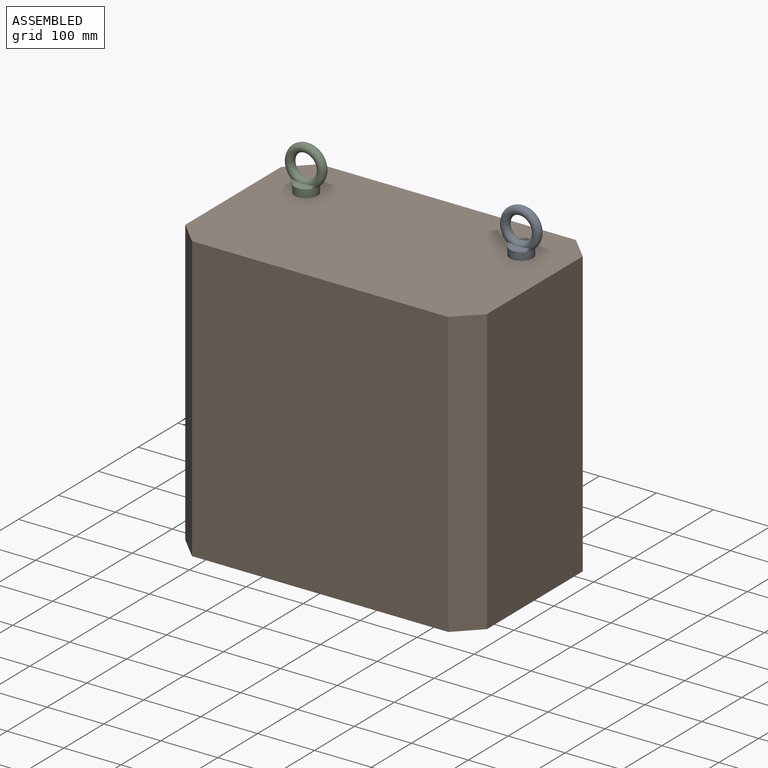
[diagram: assembled view]
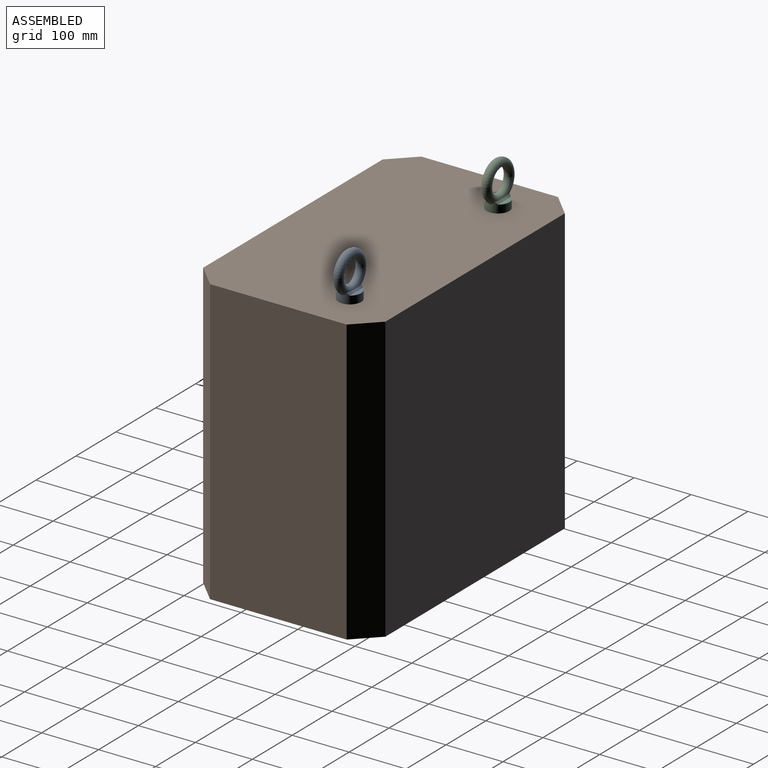
[diagram: assembled view, second angle]
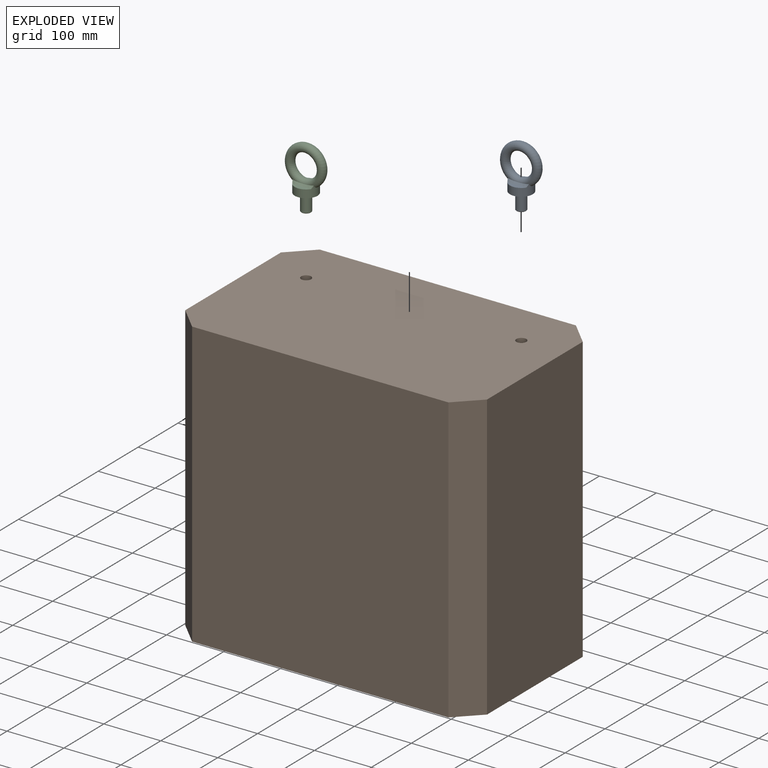
[diagram: exploded view]
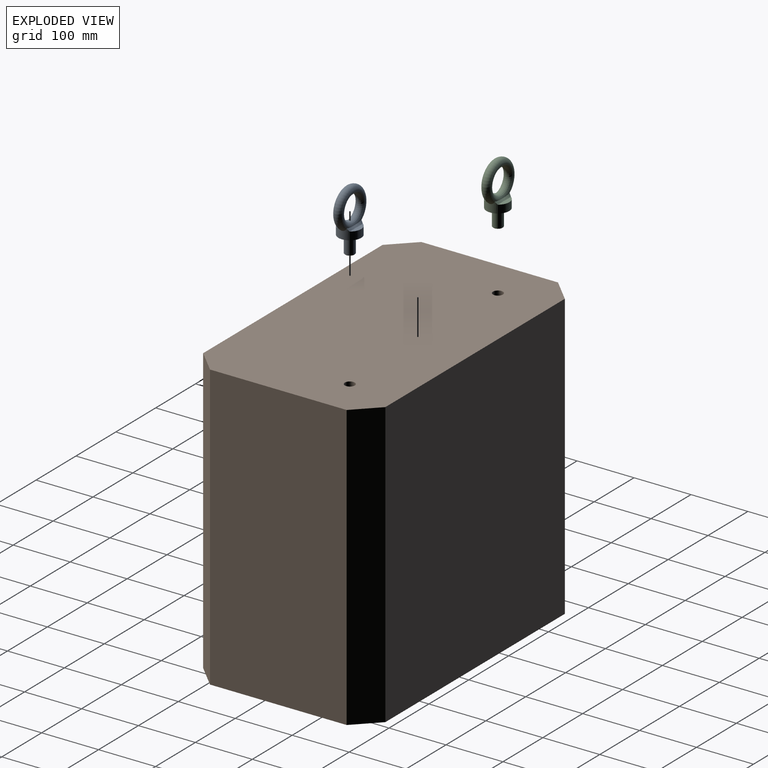
[diagram: exploded view, second angle]
ASSEMBLY  parts=3 mates=2
PART A: 10 faces, bbox 71.9x40.8x109.3 mm
  f0: revolved ~71.1x71.1mm, area 7543.6mm2, adj f3,f7,f8
  f1: plane 33.86x9.57mm, normal (0,0,1), area 198.9mm2, adj f3,f7
  f2: plane 33.86x9.57mm, normal (0,0,1), area 198.9mm2, adj f3,f8
  f3: cylinder r=20mm len=40mm, axis (0,0,-1), area 1844.1mm2, adj f0,f1,f2,f4,f7,f8
  f4: plane 40x40mm, normal (0,0,-1), area 1016.1mm2, adj f3,f5
  f5: cylinder r=8.75mm len=29mm, axis (0,0,-1), area 1594.4mm2, adj f4,f9
  f6: plane 15.5x15.5mm, normal (0,0,-1), area 188.7mm2, adj f9
  f7: bspline ~38.69x4.57mm, area 169.8mm2, adj f0,f1,f3
  f8: bspline ~38.69x4.57mm, area 169.8mm2, adj f0,f2,f3
  f9: cone r=7.75mm half-angle=45deg, axis (0,0,1), area 73.3mm2, adj f5,f6
PART B: 14 faces, bbox 530x320x500 mm
  f0: plane 500x240mm, normal (-1,0,0), area 120000mm2, adj f1,f3,f10,f13
  f1: plane 530x320mm, normal (0,0,-1), area 166400mm2, adj f0,f2,f4,f5,f10,f11,f12,f13
  f2: plane 500x240mm, normal (1,0,0), area 120000mm2, adj f1,f3,f11,f12
  f3: plane 530x320mm, normal (0,0,1), area 165918.9mm2, adj f0,f2,f4,f5,f6,f8,f10,f11
  f4: plane 500x450mm, normal (0,-1,0), area 225000mm2, adj f1,f3,f10,f11
  f5: plane 500x450mm, normal (0,1,0), area 225000mm2, adj f1,f3,f12,f13
  f6: cylinder r=8.75mm len=67.5mm, axis (0,0,1), area 3711mm2, adj f3,f7
  f7: cone r=0mm half-angle=59deg, axis (0,0,1), area 280.6mm2, adj f6
  f8: cylinder r=8.75mm len=67.5mm, axis (0,0,1), area 3711mm2, adj f3,f9
  f9: cone r=0mm half-angle=59deg, axis (0,0,1), area 280.6mm2, adj f8
  f10: plane 500x40mm, normal (-0.71,-0.71,0), area 28284.3mm2, adj f0,f1,f3,f4
  f11: plane 500x40mm, normal (0.71,-0.71,0), area 28284.3mm2, adj f1,f2,f3,f4
  f12: plane 500x40mm, normal (0.71,0.71,0), area 28284.3mm2, adj f1,f2,f3,f5
  f13: plane 500x40mm, normal (-0.71,0.71,0), area 28284.3mm2, adj f0,f1,f3,f5
PART C: same geometry as A
PLACE A t=(73.94,-187.04,408.07)mm
PLACE B t=(-116.06,-260.04,115.07)mm
PLACE C t=(-301.81,-190.04,408.07)mm
MATE fastened C.f3 <-> B.f6  axis (0,0,-1) through (-301.81,-190.04,365.07)mm
MATE fastened A.f3 <-> B.f8  axis (0,0,-1) through (73.94,-187.04,365.07)mm
